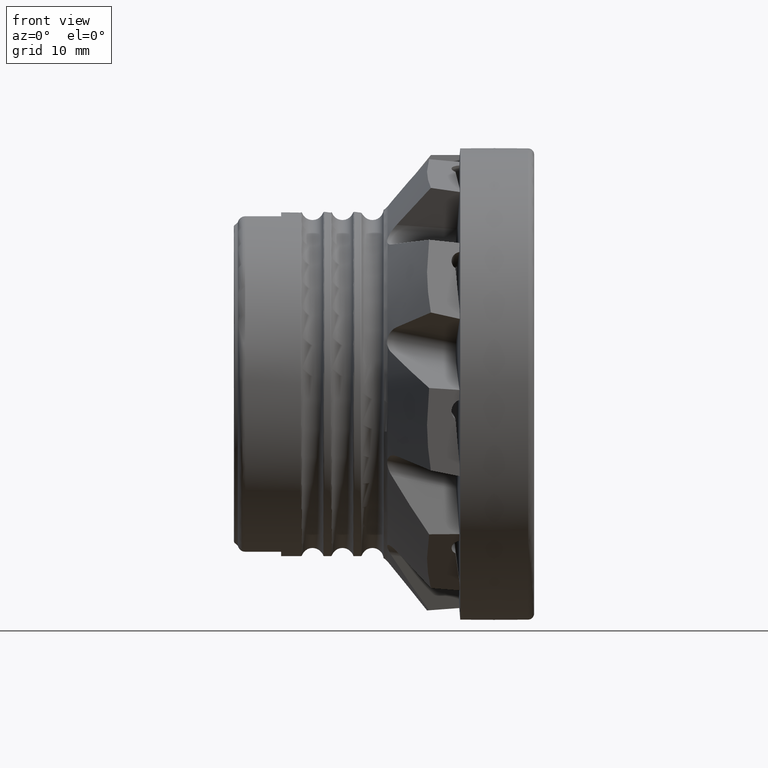
[diagram: clean part render]
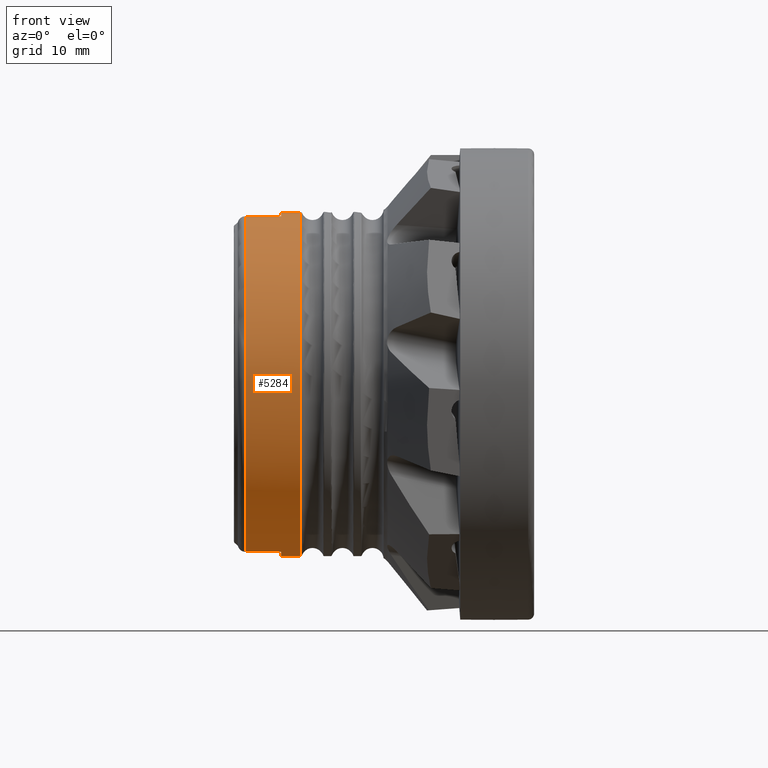
[diagram: same view with one face highlighted and labeled with its STEP entity id]
A machine part, front view. The second image highlights one B-rep face of the part: STEP entity #5284.
In plain terms, the highlighted cylindrical surface (bore or boss wall) has radius 23 mm, axis along (1, -0, -0).
Its self-contained STEP definition (entity closure, byte-faithful):
#20 = CARTESIAN_POINT ( 'NONE',  ( -37.90023802096011700, 19.60924842205031000, -12.29230215445949700 ) ) ;
#40 = ORIENTED_EDGE ( 'NONE', *, *, #6624, .F. ) ;
#57 = CYLINDRICAL_SURFACE ( 'NONE', #3734, 23.00000000000000000 ) ;
#79 = CARTESIAN_POINT ( 'NONE',  ( -37.90023802096011700, -10.11479201097372300, 20.81620278797663600 ) ) ;
#109 = CARTESIAN_POINT ( 'NONE',  ( -37.90023802096011700, -10.11479201492271200, -20.81620278605779000 ) ) ;
#526 = VERTEX_POINT ( 'NONE', #1529 ) ;
#543 = CARTESIAN_POINT ( 'NONE',  ( -33.09999999999999400, 0.0000000000000000000, 0.0000000000000000000 ) ) ;
#671 = ORIENTED_EDGE ( 'NONE', *, *, #7548, .T. ) ;
#689 = CARTESIAN_POINT ( 'NONE',  ( -37.90023802096011700, 22.56403396095860400, -5.146619020572512900 ) ) ;
#752 = CARTESIAN_POINT ( 'NONE',  ( -37.90023802096011000, -16.40741438583150800, 16.32237939477677100 ) ) ;
#776 = CARTESIAN_POINT ( 'NONE',  ( -37.90011901045724600, -5.200000001063073400, -22.40446384069353800 ) ) ;
#821 = CARTESIAN_POINT ( 'NONE',  ( 7.440139536117820200E-016, -5.200000000000000200, 22.40446384094026700 ) ) ;
#874 = AXIS2_PLACEMENT_3D ( 'NONE', #3282, #8046, #3967 ) ;
#956 = CARTESIAN_POINT ( 'NONE',  ( -37.90011901047260800, -5.199999996812754200, 22.40446384168002000 ) ) ;
#1076 = EDGE_CURVE ( 'NONE', #526, #5573, #4938, .T. ) ;
#1179 = DIRECTION ( 'NONE',  ( -1.000000000000000000, 0.0000000000000000000, 0.0000000000000000000 ) ) ;
#1213 = DIRECTION ( 'NONE',  ( 0.0000000000000000000, 3.552713678800500900E-015, -1.000000000000000000 ) ) ;
#1225 = VERTEX_POINT ( 'NONE', #3900 ) ;
#1227 = CIRCLE ( 'NONE', #4181, 23.00000000000000000 ) ;
#1362 = CARTESIAN_POINT ( 'NONE',  ( -37.90023802096011700, 23.00000000019414200, 2.573580370861086900 ) ) ;
#1407 = LINE ( 'NONE', #821, #4800 ) ;
#1419 = CARTESIAN_POINT ( 'NONE',  ( -37.90023802096011000, -20.86847971848482400, 10.00649140181569900 ) ) ;
#1486 = CARTESIAN_POINT ( 'NONE',  ( 7.440139536117820200E-016, -5.200000000000000200, -22.40446384094026700 ) ) ;
#1518 = ORIENTED_EDGE ( 'NONE', *, *, #6371, .F. ) ;
#1529 = CARTESIAN_POINT ( 'NONE',  ( -37.90011901048005400, 5.199999999999996600, -22.40446384094027400 ) ) ;
#1648 = DIRECTION ( 'NONE',  ( 1.000000000000000000, -0.0000000000000000000, -0.0000000000000000000 ) ) ;
#1848 = CARTESIAN_POINT ( 'NONE',  ( -4.464083721670690300E-016, 5.199999999999998400, 22.40446384094026700 ) ) ;
#1947 = CIRCLE ( 'NONE', #3342, 23.00000000000000000 ) ;
#2013 = CARTESIAN_POINT ( 'NONE',  ( -37.90011901048005400, 5.199999999999996600, -22.40446384094027400 ) ) ;
#2039 = CARTESIAN_POINT ( 'NONE',  ( -37.90023802096011700, 20.86847972057371700, 10.00649139739876500 ) ) ;
#2098 = CARTESIAN_POINT ( 'NONE',  ( -37.90023802096011000, -22.99999999975588600, 2.573580375013260200 ) ) ;
#2160 = DIRECTION ( 'NONE',  ( -1.000000000000000000, 0.0000000000000000000, 0.0000000000000000000 ) ) ;
#2196 = DIRECTION ( 'NONE',  ( 1.000000000000000000, -0.0000000000000000000, -0.0000000000000000000 ) ) ;
#2278 = CARTESIAN_POINT ( 'NONE',  ( -33.09999999999999400, 5.199999999999995700, 22.40446384094026700 ) ) ;
#2435 = EDGE_CURVE ( 'NONE', #8519, #1225, #4711, .T. ) ;
#2570 = VECTOR ( 'NONE', #1179, 1000.000000000000000 ) ;
#2580 = CARTESIAN_POINT ( 'NONE',  ( -33.09999999999999400, 5.199999999999995700, -22.40446384094026700 ) ) ;
#2707 = CARTESIAN_POINT ( 'NONE',  ( -37.90023802096011700, 16.40741438976009900, 16.32237939079059100 ) ) ;
#2763 = CARTESIAN_POINT ( 'NONE',  ( -37.90023802096011000, -22.56403396175454600, -5.146619017200683800 ) ) ;
#2868 = DIRECTION ( 'NONE',  ( 1.000000000000000000, -0.0000000000000000000, -0.0000000000000000000 ) ) ;
#2878 = VECTOR ( 'NONE', #2160, 1000.000000000000000 ) ;
#2975 = DIRECTION ( 'NONE',  ( 0.0000000000000000000, 0.0000000000000000000, -1.000000000000000000 ) ) ;
#3028 = ORIENTED_EDGE ( 'NONE', *, *, #6383, .F. ) ;
#3127 = EDGE_LOOP ( 'NONE', ( #671 ) ) ;
#3209 = VECTOR ( 'NONE', #2196, 1000.000000000000000 ) ;
#3260 = CARTESIAN_POINT ( 'NONE',  ( -33.09999999999999400, 0.0000000000000000000, 0.0000000000000000000 ) ) ;
#3282 = CARTESIAN_POINT ( 'NONE',  ( -30.49059737205868000, 0.0000000000000000000, 0.0000000000000000000 ) ) ;
#3342 = AXIS2_PLACEMENT_3D ( 'NONE', #543, #5259, #1213 ) ;
#3355 = CARTESIAN_POINT ( 'NONE',  ( -37.90023802096011700, 10.11479201349476400, -20.81620278672253500 ) ) ;
#3378 = CARTESIAN_POINT ( 'NONE',  ( -37.90023802096011700, 10.11479201663543200, 20.81620278519644200 ) ) ;
#3416 = CARTESIAN_POINT ( 'NONE',  ( -37.90011901047260800, -5.199999996812754200, 22.40446384168002000 ) ) ;
#3445 = CARTESIAN_POINT ( 'NONE',  ( -37.90023802096011000, -19.60924842353504300, -12.29230215214027300 ) ) ;
#3527 = ORIENTED_EDGE ( 'NONE', *, *, #1076, .T. ) ;
#3734 = AXIS2_PLACEMENT_3D ( 'NONE', #5713, #1648, #2975 ) ;
#3743 = CARTESIAN_POINT ( 'NONE',  ( -30.49059737205868000, 0.0000000000000000000, -23.00000000000000000 ) ) ;
#3848 = FACE_OUTER_BOUND ( 'NONE', #7784, .T. ) ;
#3900 = CARTESIAN_POINT ( 'NONE',  ( -37.90011901045724600, -5.200000001063073400, -22.40446384069353800 ) ) ;
#3941 = DIRECTION ( 'NONE',  ( 0.0000000000000000000, 0.0000000000000000000, -1.000000000000000000 ) ) ;
#3967 = DIRECTION ( 'NONE',  ( 0.0000000000000000000, 0.0000000000000000000, -1.000000000000000000 ) ) ;
#4041 = CARTESIAN_POINT ( 'NONE',  ( -37.90023802096011000, 16.40741438729744000, -16.32237939326608600 ) ) ;
#4048 = EDGE_CURVE ( 'NONE', #4754, #5573, #6158, .T. ) ;
#4062 = CARTESIAN_POINT ( 'NONE',  ( -37.90011900015348800, 5.200000003380011100, 22.40446384015578500 ) ) ;
#4100 = CARTESIAN_POINT ( 'NONE',  ( -37.90023802096010300, -7.706942971019854500, 21.82261088817907400 ) ) ;
#4127 = CARTESIAN_POINT ( 'NONE',  ( -37.90023802096011000, -14.46548562187316700, -18.06579756497910000 ) ) ;
#4181 = AXIS2_PLACEMENT_3D ( 'NONE', #3260, #8011, #3941 ) ;
#4709 = CARTESIAN_POINT ( 'NONE',  ( -37.90023802096010300, 7.706942973894978600, -21.82261088713592700 ) ) ;
#4711 = LINE ( 'NONE', #1486, #2878 ) ;
#4740 = CARTESIAN_POINT ( 'NONE',  ( -37.90023802096011000, 20.86847971906398400, -10.00649140054732200 ) ) ;
#4754 = VERTEX_POINT ( 'NONE', #2278 ) ;
#4800 = VECTOR ( 'NONE', #2868, 1000.000000000000000 ) ;
#4805 = CARTESIAN_POINT ( 'NONE',  ( -37.90023802096010300, -14.46548561844595500, 18.06579756772330500 ) ) ;
#4832 = CARTESIAN_POINT ( 'NONE',  ( -37.90023802096011700, -7.706942975159790000, -21.82261088671700500 ) ) ;
#4853 = ORIENTED_EDGE ( 'NONE', *, *, #4048, .F. ) ;
#4938 = B_SPLINE_CURVE_WITH_KNOTS ( 'NONE', 3,
 ( #2013, #4709, #3355, #8109, #4041, #20, #4740, #689, #5412, #1362, #6081, #2039, #6764, #2707, #7453, #3378, #8139, #4062 ),
 .UNSPECIFIED., .F., .F.,
 ( 4, 2, 2, 2, 2, 2, 2, 2, 4 ),
 ( 0.03629667594818764000, 0.08972250695813914500, 0.1431483379680906500, 0.1965741689780421400, 0.2499999999879936600, 0.3034258309979451800, 0.3568516620078966400, 0.4102774930178481600, 0.4637033240277996800 ),
 .UNSPECIFIED. ) ;
#4982 = EDGE_CURVE ( 'NONE', #7941, #8519, #1227, .T. ) ;
#5259 = DIRECTION ( 'NONE',  ( -1.000000000000000000, -0.0000000000000000000, -0.0000000000000000000 ) ) ;
#5280 = VERTEX_POINT ( 'NONE', #956 ) ;
#5284 = ADVANCED_FACE ( 'NONE', ( #3848, #5441 ), #57, .T. ) ;
#5310 = CIRCLE ( 'NONE', #874, 23.00000000000000000 ) ;
#5412 = CARTESIAN_POINT ( 'NONE',  ( -37.90023802096011000, 22.99999999980585500, -2.573580374331243100 ) ) ;
#5420 = B_SPLINE_CURVE_WITH_KNOTS ( 'NONE', 3,
 ( #3416, #4100, #79, #4805, #752, #5476, #1419, #6151, #2098, #6821, #2763, #7513, #3445, #8195, #4127, #109, #4832, #776 ),
 .UNSPECIFIED., .F., .F.,
 ( 4, 2, 2, 2, 2, 2, 2, 2, 4 ),
 ( 0.5362966759255463100, 0.5897225069403856400, 0.6431483379552249700, 0.6965741689700641900, 0.7499999999849035200, 0.8034258309997428500, 0.8568516620145820700, 0.9102774930294214000, 0.9637033240442607300 ),
 .UNSPECIFIED. ) ;
#5429 = CARTESIAN_POINT ( 'NONE',  ( -33.09999999999999400, -5.200000000000003700, 22.40446384094026700 ) ) ;
#5441 = FACE_OUTER_BOUND ( 'NONE', #3127, .T. ) ;
#5476 = CARTESIAN_POINT ( 'NONE',  ( -37.90023802096011700, -19.60924842120309500, 12.29230215586030700 ) ) ;
#5573 = VERTEX_POINT ( 'NONE', #7403 ) ;
#5713 = CARTESIAN_POINT ( 'NONE',  ( 0.0000000000000000000, 0.0000000000000000000, 0.0000000000000000000 ) ) ;
#6081 = CARTESIAN_POINT ( 'NONE',  ( -37.90023802096011000, 22.56403396173511000, 5.146619017168137400 ) ) ;
#6151 = CARTESIAN_POINT ( 'NONE',  ( -37.90023802096011700, -22.56403396077818600, 5.146619021481265900 ) ) ;
#6158 = LINE ( 'NONE', #1848, #2570 ) ;
#6249 = CARTESIAN_POINT ( 'NONE',  ( -4.464083721670690300E-016, 5.199999999999998400, -22.40446384094026700 ) ) ;
#6371 = EDGE_CURVE ( 'NONE', #526, #7941, #6794, .T. ) ;
#6383 = EDGE_CURVE ( 'NONE', #5280, #6831, #1407, .T. ) ;
#6624 = EDGE_CURVE ( 'NONE', #6831, #4754, #1947, .T. ) ;
#6649 = VERTEX_POINT ( 'NONE', #3743 ) ;
#6760 = ORIENTED_EDGE ( 'NONE', *, *, #2435, .F. ) ;
#6764 = CARTESIAN_POINT ( 'NONE',  ( -37.90023802096011000, 19.60924842390493000, 12.29230215150092100 ) ) ;
#6794 = LINE ( 'NONE', #6249, #3209 ) ;
#6821 = CARTESIAN_POINT ( 'NONE',  ( -37.90023802096011700, -23.00000000024411400, -2.573580370649971800 ) ) ;
#6831 = VERTEX_POINT ( 'NONE', #5429 ) ;
#7403 = CARTESIAN_POINT ( 'NONE',  ( -37.90011900015348800, 5.200000003380011100, 22.40446384015578500 ) ) ;
#7453 = CARTESIAN_POINT ( 'NONE',  ( -37.90023802096011000, 14.46548562298785300, 18.06579756405301800 ) ) ;
#7513 = CARTESIAN_POINT ( 'NONE',  ( -37.90023802096011700, -20.86847972038313900, -10.00649139785677700 ) ) ;
#7548 = EDGE_CURVE ( 'NONE', #6649, #6649, #5310, .T. ) ;
#7680 = EDGE_CURVE ( 'NONE', #5280, #1225, #5420, .T. ) ;
#7784 = EDGE_LOOP ( 'NONE', ( #3028, #8159, #6760, #8327, #1518, #3527, #4853, #40 ) ) ;
#7941 = VERTEX_POINT ( 'NONE', #2580 ) ;
#7975 = CARTESIAN_POINT ( 'NONE',  ( -33.09999999999999400, -5.200000000000003700, -22.40446384094026700 ) ) ;
#8011 = DIRECTION ( 'NONE',  ( -1.000000000000000000, -0.0000000000000000000, -0.0000000000000000000 ) ) ;
#8046 = DIRECTION ( 'NONE',  ( -1.000000000000000000, -0.0000000000000000000, -0.0000000000000000000 ) ) ;
#8109 = CARTESIAN_POINT ( 'NONE',  ( -37.90023802096010300, 14.46548562026214800, -18.06579756623551300 ) ) ;
#8139 = CARTESIAN_POINT ( 'NONE',  ( -37.90023802096011700, 7.706942977187492400, 21.82261088597312000 ) ) ;
#8159 = ORIENTED_EDGE ( 'NONE', *, *, #7680, .T. ) ;
#8195 = CARTESIAN_POINT ( 'NONE',  ( -37.90023802096011700, -16.40741438892799700, -16.32237939166415300 ) ) ;
#8327 = ORIENTED_EDGE ( 'NONE', *, *, #4982, .F. ) ;
#8519 = VERTEX_POINT ( 'NONE', #7975 ) ;